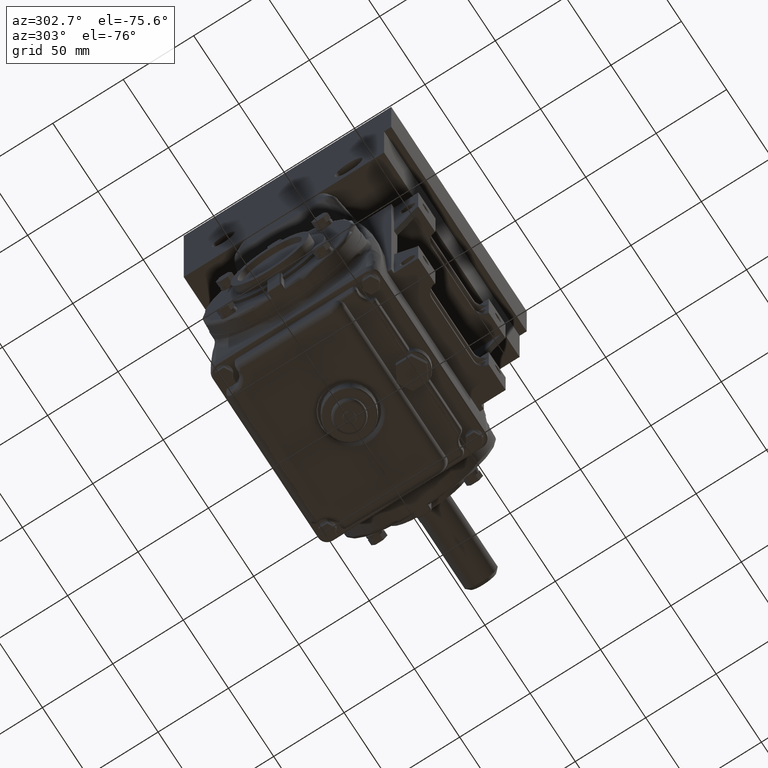
[diagram: clean part render]
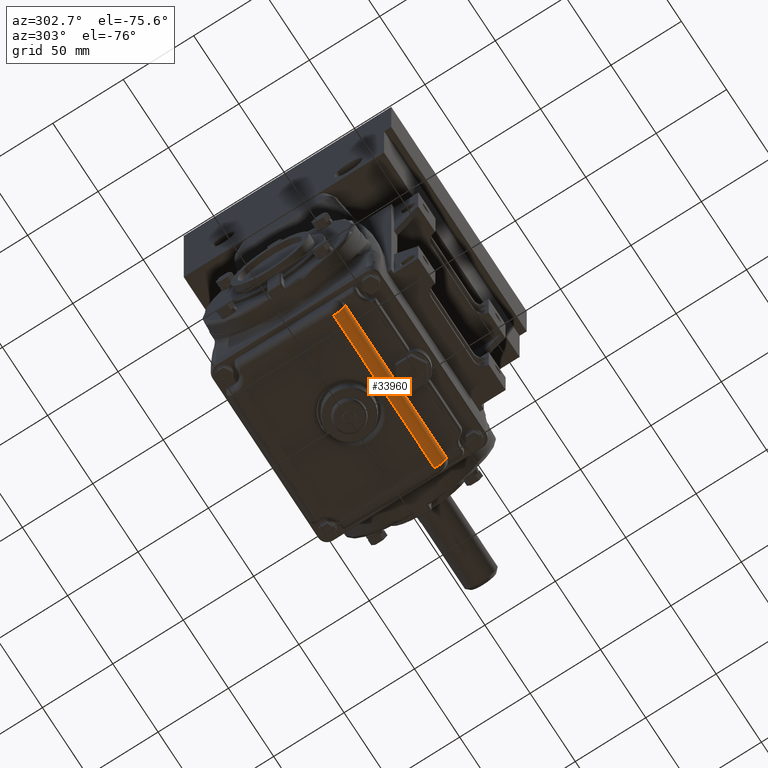
[diagram: same view with one face highlighted and labeled with its STEP entity id]
A machine part, auxiliary view. The second image highlights one B-rep face of the part: STEP entity #33960.
In plain terms, the highlighted cylindrical surface (edge-blend (fillet) strip) has radius 7.62 mm, axis along (-1, -0, -0).
Its self-contained STEP definition (entity closure, byte-faithful):
#893 = CARTESIAN_POINT ( 'NONE',  ( 2.399999999999999900, -0.9999999999999998900, -2.969999999999999800 ) ) ;
#894 = CYLINDRICAL_SURFACE ( 'NONE', #942, 0.3000000000000001000 ) ;
#912 = FACE_OUTER_BOUND ( 'NONE', #33961, .T. ) ;
#913 = DIRECTION ( 'NONE',  ( -1.000000000000000000, -0.0000000000000000000, -0.0000000000000000000 ) ) ;
#914 = VECTOR ( 'NONE', #913, 39.37007874015748100 ) ;
#915 = CARTESIAN_POINT ( 'NONE',  ( 2.399999999999999900, -1.300000000000000300, -2.969999999999999800 ) ) ;
#916 = LINE ( 'NONE', #915, #914 ) ;
#918 = CARTESIAN_POINT ( 'NONE',  ( -2.200000000000001100, -1.300000000000000300, -2.969999999999999800 ) ) ;
#940 = DIRECTION ( 'NONE',  ( 0.0000000000000000000, 0.0000000000000000000, 1.000000000000000000 ) ) ;
#941 = DIRECTION ( 'NONE',  ( -1.000000000000000000, -0.0000000000000000000, -0.0000000000000000000 ) ) ;
#942 = AXIS2_PLACEMENT_3D ( 'NONE', #893, #941, #940 ) ;
#1195 = CIRCLE ( 'NONE', #1245, 0.3000000000000001000 ) ;
#1236 = DIRECTION ( 'NONE',  ( 0.0000000000000000000, 0.0000000000000000000, 1.000000000000000000 ) ) ;
#1237 = DIRECTION ( 'NONE',  ( 1.000000000000000000, 0.0000000000000000000, -0.0000000000000000000 ) ) ;
#1238 = CARTESIAN_POINT ( 'NONE',  ( -2.200000000000002000, -0.9999999999999998900, -2.969999999999999800 ) ) ;
#1239 = AXIS2_PLACEMENT_3D ( 'NONE', #1238, #1237, #1236 ) ;
#1240 = CIRCLE ( 'NONE', #1239, 0.3000000000000001000 ) ;
#1242 = DIRECTION ( 'NONE',  ( 0.0000000000000000000, 0.0000000000000000000, 1.000000000000000000 ) ) ;
#1243 = DIRECTION ( 'NONE',  ( -1.000000000000000000, -0.0000000000000000000, 0.0000000000000000000 ) ) ;
#1244 = CARTESIAN_POINT ( 'NONE',  ( 2.199999999999999700, -0.9999999999999998900, -2.969999999999999800 ) ) ;
#1245 = AXIS2_PLACEMENT_3D ( 'NONE', #1244, #1243, #1242 ) ;
#1265 = CARTESIAN_POINT ( 'NONE',  ( 2.199999999999999700, -1.300000000000000300, -2.969999999999999800 ) ) ;
#12410 = CARTESIAN_POINT ( 'NONE',  ( 2.199999999999999700, -0.9748966470003073100, -3.268947857774851400 ) ) ;
#12491 = CARTESIAN_POINT ( 'NONE',  ( 2.199999999999999700, -0.9999999999999998900, -3.270000000000000000 ) ) ;
#12492 = DIRECTION ( 'NONE',  ( 0.0000000000000000000, 0.0000000000000000000, 1.000000000000000000 ) ) ;
#12493 = DIRECTION ( 'NONE',  ( -1.000000000000000000, -0.0000000000000000000, 0.0000000000000000000 ) ) ;
#12494 = CARTESIAN_POINT ( 'NONE',  ( 2.199999999999999700, -0.9999999999999998900, -2.969999999999999800 ) ) ;
#12495 = AXIS2_PLACEMENT_3D ( 'NONE', #12494, #12493, #12492 ) ;
#12496 = CIRCLE ( 'NONE', #12495, 0.3000000000000001000 ) ;
#12694 = CARTESIAN_POINT ( 'NONE',  ( -2.199999999999998800, -0.9748966470003073100, -3.268947857774851400 ) ) ;
#12697 = DIRECTION ( 'NONE',  ( 0.0000000000000000000, 0.0000000000000000000, 1.000000000000000000 ) ) ;
#12698 = DIRECTION ( 'NONE',  ( 1.000000000000000000, 0.0000000000000000000, -0.0000000000000000000 ) ) ;
#12700 = CARTESIAN_POINT ( 'NONE',  ( -2.200000000000002000, -0.9999999999999998900, -2.969999999999999800 ) ) ;
#12701 = AXIS2_PLACEMENT_3D ( 'NONE', #12700, #12698, #12697 ) ;
#12703 = CIRCLE ( 'NONE', #12701, 0.3000000000000001000 ) ;
#12838 = CARTESIAN_POINT ( 'NONE',  ( -2.200000000000002000, -0.9999999999999998900, -3.270000000000000000 ) ) ;
#24626 = VERTEX_POINT ( 'NONE', #12410 ) ;
#24628 = EDGE_CURVE ( 'NONE', #24626, #24629, #12496, .T. ) ;
#24629 = VERTEX_POINT ( 'NONE', #12491 ) ;
#24654 = EDGE_CURVE ( 'NONE', #24678, #24656, #12703, .T. ) ;
#24656 = VERTEX_POINT ( 'NONE', #12694 ) ;
#24678 = VERTEX_POINT ( 'NONE', #12838 ) ;
#33059 = EDGE_CURVE ( 'NONE', #24626, #24656, #37959, .T. ) ;
#33957 = VERTEX_POINT ( 'NONE', #918 ) ;
#33959 = EDGE_CURVE ( 'NONE', #34032, #33957, #916, .T. ) ;
#33960 = ADVANCED_FACE ( 'NONE', ( #912 ), #894, .T. ) ;
#33961 = EDGE_LOOP ( 'NONE', ( #33962, #33963, #34019, #34021, #34022, #34024 ) ) ;
#33962 = ORIENTED_EDGE ( 'NONE', *, *, #33059, .F. ) ;
#33963 = ORIENTED_EDGE ( 'NONE', *, *, #24628, .T. ) ;
#34019 = ORIENTED_EDGE ( 'NONE', *, *, #34020, .T. ) ;
#34020 = EDGE_CURVE ( 'NONE', #24629, #34032, #1195, .T. ) ;
#34021 = ORIENTED_EDGE ( 'NONE', *, *, #33959, .T. ) ;
#34022 = ORIENTED_EDGE ( 'NONE', *, *, #34023, .T. ) ;
#34023 = EDGE_CURVE ( 'NONE', #33957, #24678, #1240, .T. ) ;
#34024 = ORIENTED_EDGE ( 'NONE', *, *, #24654, .T. ) ;
#34032 = VERTEX_POINT ( 'NONE', #1265 ) ;
#37956 = DIRECTION ( 'NONE',  ( -1.000000000000000000, -0.0000000000000000000, -0.0000000000000000000 ) ) ;
#37957 = VECTOR ( 'NONE', #37956, 39.37007874015748100 ) ;
#37958 = CARTESIAN_POINT ( 'NONE',  ( 2.399999999999999900, -0.9748966470003073100, -3.268947857774851400 ) ) ;
#37959 = LINE ( 'NONE', #37958, #37957 ) ;